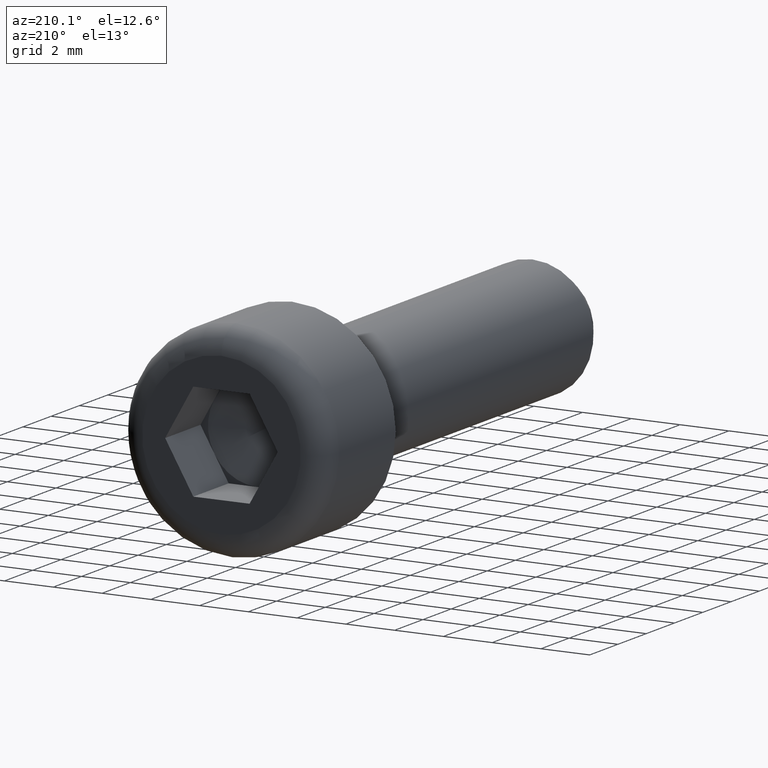
[diagram: clean part render]
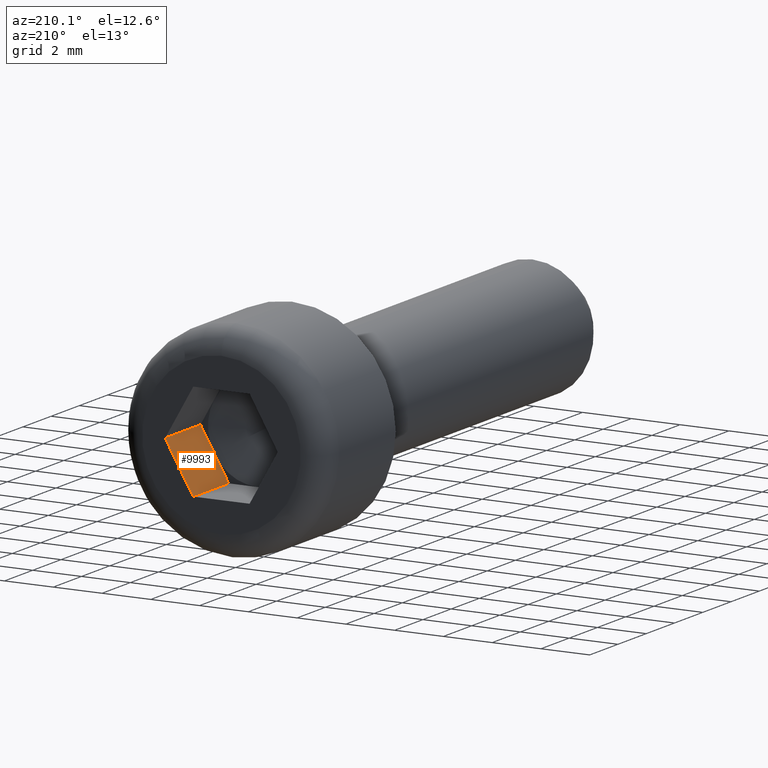
[diagram: same view with one face highlighted and labeled with its STEP entity id]
A machine part, auxiliary view. The second image highlights one B-rep face of the part: STEP entity #9993.
In plain terms, the highlighted planar face has unit normal (0.866, 0, -0.5).
Its self-contained STEP definition (entity closure, byte-faithful):
#1713 = PLANE ( 'NONE',  #9955 ) ;
#1858 = VECTOR ( 'NONE', #11941, 1000.000000000000100 ) ;
#2016 = DIRECTION ( 'NONE',  ( -0.5000000000000002200, 0.0000000000000000000, -0.8660254037844384900 ) ) ;
#2805 = ORIENTED_EDGE ( 'NONE', *, *, #7455, .T. ) ;
#3044 = CARTESIAN_POINT ( 'NONE',  ( 2.309401076758503400, 2.500000000000000000, 2.611059807007824700E-016 ) ) ;
#3141 = CARTESIAN_POINT ( 'NONE',  ( 2.309401076758503400, 5.000000000000000000, 2.611059807007824700E-016 ) ) ;
#3624 = EDGE_CURVE ( 'NONE', #10141, #13294, #4764, .T. ) ;
#4561 = VERTEX_POINT ( 'NONE', #4857 ) ;
#4727 = ORIENTED_EDGE ( 'NONE', *, *, #7578, .T. ) ;
#4764 = LINE ( 'NONE', #12704, #1858 ) ;
#4850 = VECTOR ( 'NONE', #14874, 1000.000000000000000 ) ;
#4857 = CARTESIAN_POINT ( 'NONE',  ( 1.154700538379251200, 5.000000000000000000, -1.999999999999999600 ) ) ;
#6470 = ORIENTED_EDGE ( 'NONE', *, *, #11483, .F. ) ;
#6600 = LINE ( 'NONE', #3044, #10203 ) ;
#7455 = EDGE_CURVE ( 'NONE', #10916, #4561, #11007, .T. ) ;
#7578 = EDGE_CURVE ( 'NONE', #10141, #10916, #7726, .T. ) ;
#7726 = LINE ( 'NONE', #14054, #8296 ) ;
#7778 = CARTESIAN_POINT ( 'NONE',  ( 2.309401076758503400, 2.500000000000000000, 2.611059807007824700E-016 ) ) ;
#7877 = LINE ( 'NONE', #10118, #4850 ) ;
#8072 = DIRECTION ( 'NONE',  ( -0.0000000000000000000, 1.000000000000000000, -0.0000000000000000000 ) ) ;
#8074 = FACE_OUTER_BOUND ( 'NONE', #12294, .T. ) ;
#8296 = VECTOR ( 'NONE', #8072, 1000.000000000000000 ) ;
#8669 = DIRECTION ( 'NONE',  ( 0.8660254037844386000, 0.0000000000000000000, -0.5000000000000003300 ) ) ;
#8720 = CARTESIAN_POINT ( 'NONE',  ( 2.309401076758503400, 2.500000000000000000, 2.611059807007824700E-016 ) ) ;
#9955 = AXIS2_PLACEMENT_3D ( 'NONE', #8720, #8669, #10983 ) ;
#9993 = ADVANCED_FACE ( 'NONE', ( #8074 ), #1713, .F. ) ;
#10118 = CARTESIAN_POINT ( 'NONE',  ( 1.154700538379251200, 2.500000000000000000, -1.999999999999999600 ) ) ;
#10141 = VERTEX_POINT ( 'NONE', #7778 ) ;
#10203 = VECTOR ( 'NONE', #2016, 1000.000000000000100 ) ;
#10371 = ORIENTED_EDGE ( 'NONE', *, *, #13040, .F. ) ;
#10916 = VERTEX_POINT ( 'NONE', #14608 ) ;
#10983 = DIRECTION ( 'NONE',  ( -0.5000000000000002200, 0.0000000000000000000, -0.8660254037844384900 ) ) ;
#11007 = LINE ( 'NONE', #3141, #12633 ) ;
#11202 = DIRECTION ( 'NONE',  ( -0.5000000000000002200, 0.0000000000000000000, -0.8660254037844384900 ) ) ;
#11483 = EDGE_CURVE ( 'NONE', #12461, #4561, #7877, .T. ) ;
#11899 = ORIENTED_EDGE ( 'NONE', *, *, #3624, .F. ) ;
#11941 = DIRECTION ( 'NONE',  ( -0.5000000000000002200, 0.0000000000000000000, -0.8660254037844384900 ) ) ;
#12294 = EDGE_LOOP ( 'NONE', ( #2805, #6470, #10371, #11899, #4727 ) ) ;
#12461 = VERTEX_POINT ( 'NONE', #13212 ) ;
#12633 = VECTOR ( 'NONE', #11202, 1000.000000000000100 ) ;
#12704 = CARTESIAN_POINT ( 'NONE',  ( 2.309401076758503400, 2.500000000000000000, 2.611059807007824700E-016 ) ) ;
#13040 = EDGE_CURVE ( 'NONE', #13294, #12461, #6600, .T. ) ;
#13212 = CARTESIAN_POINT ( 'NONE',  ( 1.154700538379251200, 2.500000000000000000, -1.999999999999999600 ) ) ;
#13280 = CARTESIAN_POINT ( 'NONE',  ( 1.732050807568877200, 2.500000000000000400, -1.000000000000000400 ) ) ;
#13294 = VERTEX_POINT ( 'NONE', #13280 ) ;
#14054 = CARTESIAN_POINT ( 'NONE',  ( 2.309401076758503400, 2.500000000000000000, 2.611059807007824700E-016 ) ) ;
#14608 = CARTESIAN_POINT ( 'NONE',  ( 2.309401076758503400, 5.000000000000000000, 2.611059807007824700E-016 ) ) ;
#14874 = DIRECTION ( 'NONE',  ( -0.0000000000000000000, 1.000000000000000000, -0.0000000000000000000 ) ) ;